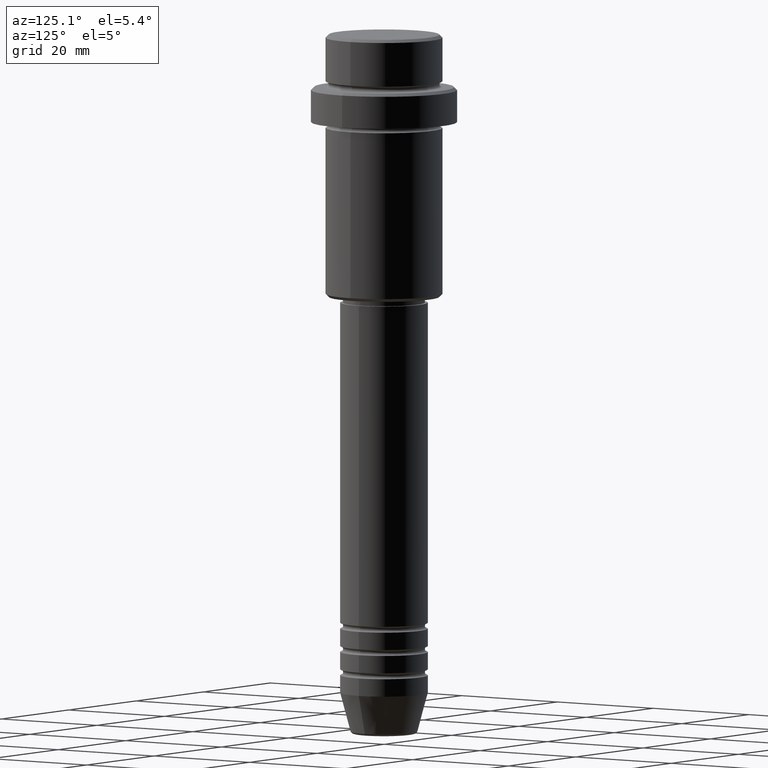
[diagram: clean part render]
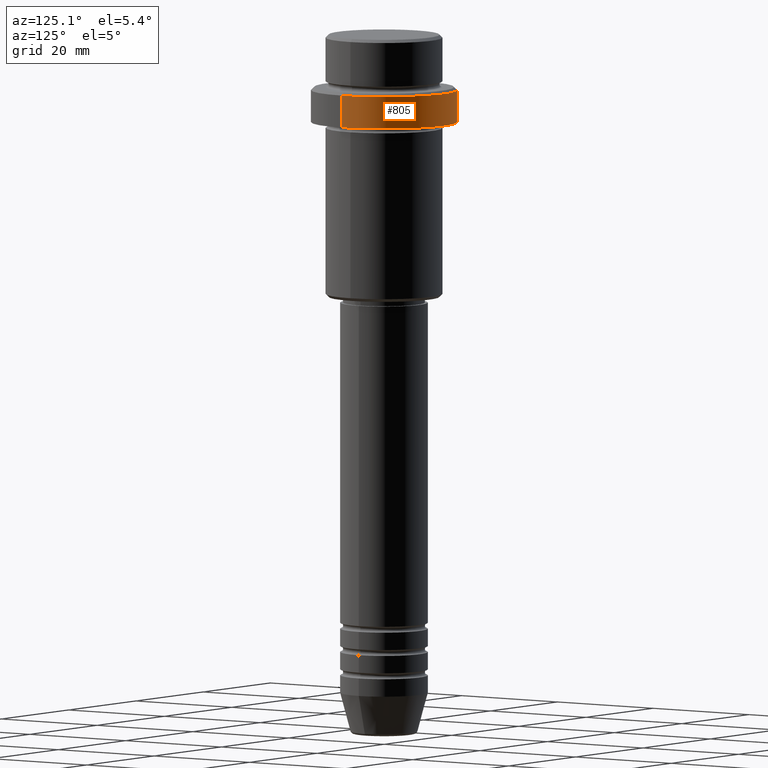
[diagram: same view with one face highlighted and labeled with its STEP entity id]
A machine part, auxiliary view. The second image highlights one B-rep face of the part: STEP entity #805.
In plain terms, the highlighted cylindrical surface (partial cylindrical patch) has radius 12.5 mm, axis along (-0, -0, 1).
Its self-contained STEP definition (entity closure, byte-faithful):
#1 = VERTEX_POINT ( 'NONE', #82 ) ;
#29 = DIRECTION ( 'NONE',  ( 1.000000000000000000, 0.000000000000000000, 0.000000000000000000 ) ) ;
#58 = EDGE_CURVE ( 'NONE', #1, #424, #1277, .T. ) ;
#82 = CARTESIAN_POINT ( 'NONE',  ( 12.50000000000000000, 0.000000000000000000, -15.00000000000000000 ) ) ;
#118 = VECTOR ( 'NONE', #471, 1000.000000000000000 ) ;
#141 = CARTESIAN_POINT ( 'NONE',  ( 0.000000000000000000, 0.000000000000000000, 0.000000000000000000 ) ) ;
#163 = DIRECTION ( 'NONE',  ( -0.000000000000000000, -0.000000000000000000, 1.000000000000000000 ) ) ;
#183 = CARTESIAN_POINT ( 'NONE',  ( 0.000000000000000000, 0.000000000000000000, -15.00000000000000000 ) ) ;
#204 = ORIENTED_EDGE ( 'NONE', *, *, #330, .T. ) ;
#243 = ORIENTED_EDGE ( 'NONE', *, *, #58, .T. ) ;
#269 = FACE_OUTER_BOUND ( 'NONE', #990, .T. ) ;
#277 = LINE ( 'NONE', #925, #781 ) ;
#330 = EDGE_CURVE ( 'NONE', #424, #464, #277, .T. ) ;
#360 = AXIS2_PLACEMENT_3D ( 'NONE', #141, #916, #29 ) ;
#375 = DIRECTION ( 'NONE',  ( 1.000000000000000000, 0.000000000000000000, 0.000000000000000000 ) ) ;
#388 = CARTESIAN_POINT ( 'NONE',  ( 12.50000000000000000, 0.000000000000000000, 0.000000000000000000 ) ) ;
#393 = EDGE_CURVE ( 'NONE', #1, #526, #1262, .T. ) ;
#424 = VERTEX_POINT ( 'NONE', #918 ) ;
#461 = EDGE_CURVE ( 'NONE', #464, #526, #763, .T. ) ;
#464 = VERTEX_POINT ( 'NONE', #480 ) ;
#471 = DIRECTION ( 'NONE',  ( -0.000000000000000000, -0.000000000000000000, 1.000000000000000000 ) ) ;
#480 = CARTESIAN_POINT ( 'NONE',  ( -12.50000000000000000, 1.530808498934191521E-15, -9.500000000000031974 ) ) ;
#487 = CARTESIAN_POINT ( 'NONE',  ( 0.000000000000000000, 0.000000000000000000, -9.500000000000031974 ) ) ;
#526 = VERTEX_POINT ( 'NONE', #1375 ) ;
#689 = DIRECTION ( 'NONE',  ( 0.000000000000000000, 0.000000000000000000, -1.000000000000000000 ) ) ;
#706 = CYLINDRICAL_SURFACE ( 'NONE', #360, 12.50000000000000000 ) ;
#716 = ORIENTED_EDGE ( 'NONE', *, *, #461, .T. ) ;
#763 = CIRCLE ( 'NONE', #1229, 12.50000000000000000 ) ;
#781 = VECTOR ( 'NONE', #163, 1000.000000000000000 ) ;
#805 = ADVANCED_FACE ( 'NONE', ( #269 ), #706, .T. ) ;
#916 = DIRECTION ( 'NONE',  ( -0.000000000000000000, -0.000000000000000000, 1.000000000000000000 ) ) ;
#918 = CARTESIAN_POINT ( 'NONE',  ( -12.50000000000000000, 1.530808498934191521E-15, -15.00000000000000000 ) ) ;
#925 = CARTESIAN_POINT ( 'NONE',  ( -12.50000000000000000, 1.530808498934191521E-15, 0.000000000000000000 ) ) ;
#990 = EDGE_LOOP ( 'NONE', ( #243, #204, #716, #1021 ) ) ;
#1021 = ORIENTED_EDGE ( 'NONE', *, *, #393, .F. ) ;
#1131 = DIRECTION ( 'NONE',  ( 1.000000000000000000, 0.000000000000000000, 0.000000000000000000 ) ) ;
#1163 = AXIS2_PLACEMENT_3D ( 'NONE', #183, #1286, #375 ) ;
#1229 = AXIS2_PLACEMENT_3D ( 'NONE', #487, #689, #1131 ) ;
#1262 = LINE ( 'NONE', #388, #118 ) ;
#1277 = CIRCLE ( 'NONE', #1163, 12.50000000000000000 ) ;
#1286 = DIRECTION ( 'NONE',  ( -0.000000000000000000, -0.000000000000000000, 1.000000000000000000 ) ) ;
#1375 = CARTESIAN_POINT ( 'NONE',  ( 12.50000000000000000, 0.000000000000000000, -9.500000000000031974 ) ) ;